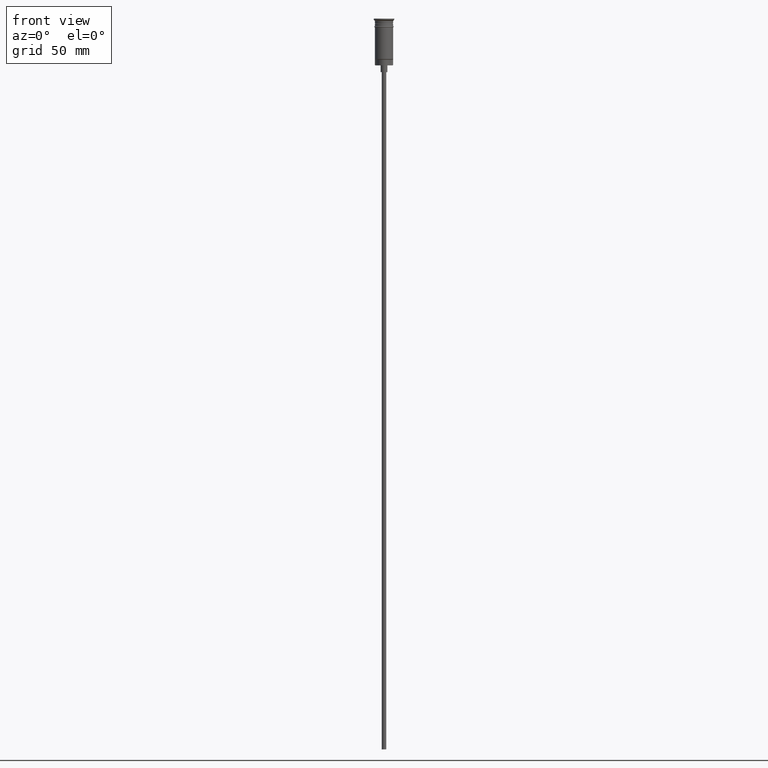
[diagram: clean part render]
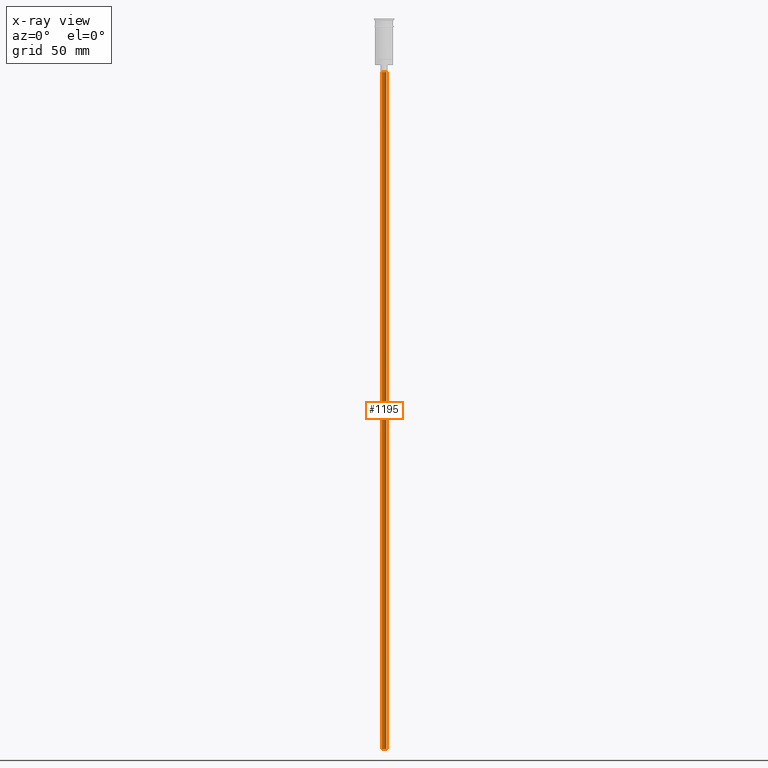
[diagram: x-ray — body ghosted, one internal face saturated and labeled with its STEP entity id]
A machine part, front view, then the same camera in x-ray: the body is ghosted and one INTERNAL B-rep face — a face not visible from any outside direction — is saturated and labeled: STEP entity #1195.
In plain terms, the highlighted cylindrical surface (edge-blend (fillet) strip) has radius 1 mm, axis along (-0, -0, 1).
Its self-contained STEP definition (entity closure, byte-faithful):
#17 = EDGE_LOOP ( 'NONE', ( #912, #1258, #619, #703 ) ) ;
#92 = VECTOR ( 'NONE', #208, 1000.000000000000000 ) ;
#117 = AXIS2_PLACEMENT_3D ( 'NONE', #1441, #695, #342 ) ;
#134 = EDGE_CURVE ( 'NONE', #283, #960, #804, .T. ) ;
#208 = DIRECTION ( 'NONE',  ( -0.000000000000000000, -0.000000000000000000, 1.000000000000000000 ) ) ;
#267 = EDGE_CURVE ( 'NONE', #1316, #1399, #954, .T. ) ;
#283 = VERTEX_POINT ( 'NONE', #1268 ) ;
#342 = DIRECTION ( 'NONE',  ( -1.000000000000000000, 0.000000000000000000, 0.000000000000000000 ) ) ;
#379 = CARTESIAN_POINT ( 'NONE',  ( -0.9999999999999997780, 1.224646799147352961E-16, -320.5000000000000000 ) ) ;
#398 = EDGE_CURVE ( 'NONE', #1399, #960, #1412, .T. ) ;
#425 = CARTESIAN_POINT ( 'NONE',  ( 0.9999999999999997780, 0.000000000000000000, -320.5000000000000000 ) ) ;
#464 = EDGE_CURVE ( 'NONE', #1316, #283, #764, .T. ) ;
#619 = ORIENTED_EDGE ( 'NONE', *, *, #134, .T. ) ;
#669 = CARTESIAN_POINT ( 'NONE',  ( 0.9999999999999997780, 0.000000000000000000, -23.49999999999999645 ) ) ;
#691 = FACE_OUTER_BOUND ( 'NONE', #17, .T. ) ;
#695 = DIRECTION ( 'NONE',  ( 0.000000000000000000, 0.000000000000000000, -1.000000000000000000 ) ) ;
#703 = ORIENTED_EDGE ( 'NONE', *, *, #398, .F. ) ;
#764 = LINE ( 'NONE', #379, #1418 ) ;
#804 = CIRCLE ( 'NONE', #117, 0.9999999999999997780 ) ;
#852 = CARTESIAN_POINT ( 'NONE',  ( 0.000000000000000000, 0.000000000000000000, -320.5000000000000000 ) ) ;
#868 = CARTESIAN_POINT ( 'NONE',  ( -0.9999999999999997780, 1.224646799147352961E-16, -320.5000000000000000 ) ) ;
#871 = DIRECTION ( 'NONE',  ( -1.000000000000000000, 0.000000000000000000, 0.000000000000000000 ) ) ;
#912 = ORIENTED_EDGE ( 'NONE', *, *, #267, .F. ) ;
#951 = DIRECTION ( 'NONE',  ( -0.000000000000000000, -0.000000000000000000, 1.000000000000000000 ) ) ;
#954 = CIRCLE ( 'NONE', #1579, 0.9999999999999997780 ) ;
#960 = VERTEX_POINT ( 'NONE', #669 ) ;
#1047 = CARTESIAN_POINT ( 'NONE',  ( 0.9999999999999997780, 0.000000000000000000, -320.5000000000000000 ) ) ;
#1195 = ADVANCED_FACE ( 'NONE', ( #691 ), #1318, .T. ) ;
#1258 = ORIENTED_EDGE ( 'NONE', *, *, #464, .T. ) ;
#1260 = DIRECTION ( 'NONE',  ( -0.000000000000000000, -0.000000000000000000, 1.000000000000000000 ) ) ;
#1268 = CARTESIAN_POINT ( 'NONE',  ( -0.9999999999999997780, 1.224646799147352961E-16, -23.49999999999999645 ) ) ;
#1316 = VERTEX_POINT ( 'NONE', #868 ) ;
#1318 = CYLINDRICAL_SURFACE ( 'NONE', #1345, 0.9999999999999997780 ) ;
#1345 = AXIS2_PLACEMENT_3D ( 'NONE', #852, #951, #1445 ) ;
#1353 = CARTESIAN_POINT ( 'NONE',  ( 0.000000000000000000, 0.000000000000000000, -320.5000000000000000 ) ) ;
#1399 = VERTEX_POINT ( 'NONE', #1047 ) ;
#1412 = LINE ( 'NONE', #425, #92 ) ;
#1418 = VECTOR ( 'NONE', #1260, 1000.000000000000000 ) ;
#1441 = CARTESIAN_POINT ( 'NONE',  ( 0.000000000000000000, 0.000000000000000000, -23.49999999999999645 ) ) ;
#1445 = DIRECTION ( 'NONE',  ( 1.000000000000000000, 0.000000000000000000, 0.000000000000000000 ) ) ;
#1486 = DIRECTION ( 'NONE',  ( 0.000000000000000000, 0.000000000000000000, -1.000000000000000000 ) ) ;
#1579 = AXIS2_PLACEMENT_3D ( 'NONE', #1353, #1486, #871 ) ;